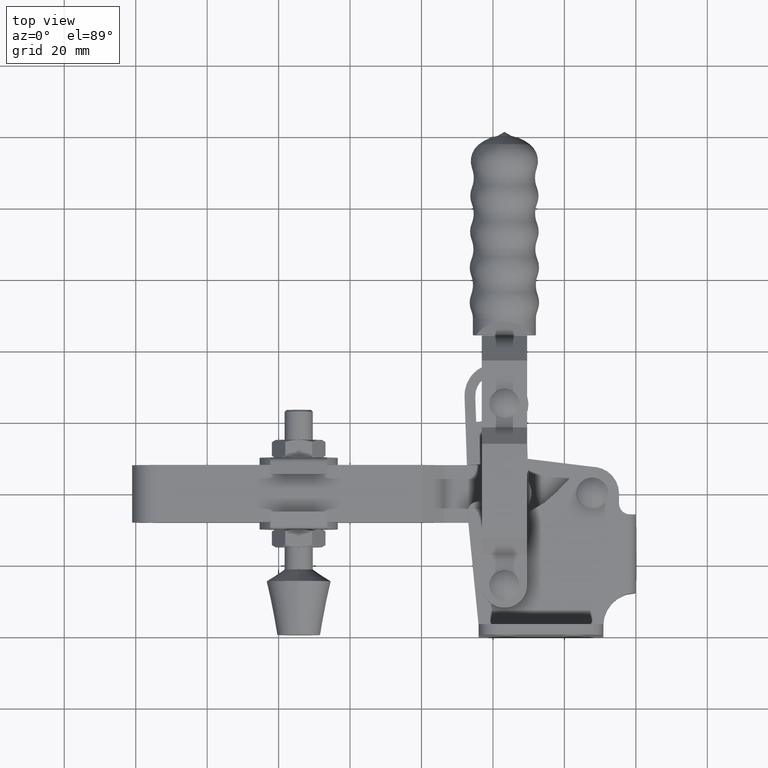
[diagram: clean part render]
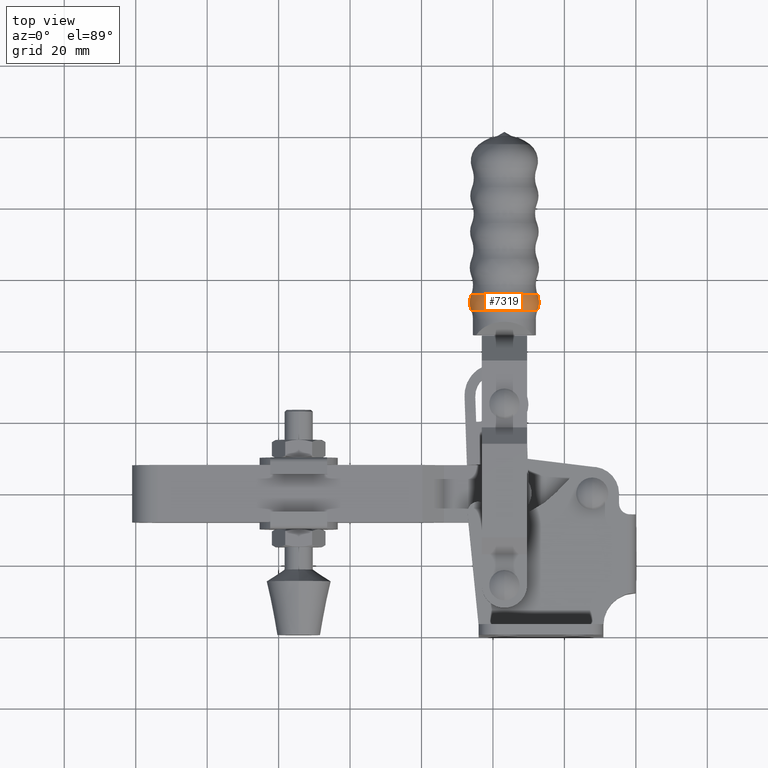
[diagram: same view with one face highlighted and labeled with its STEP entity id]
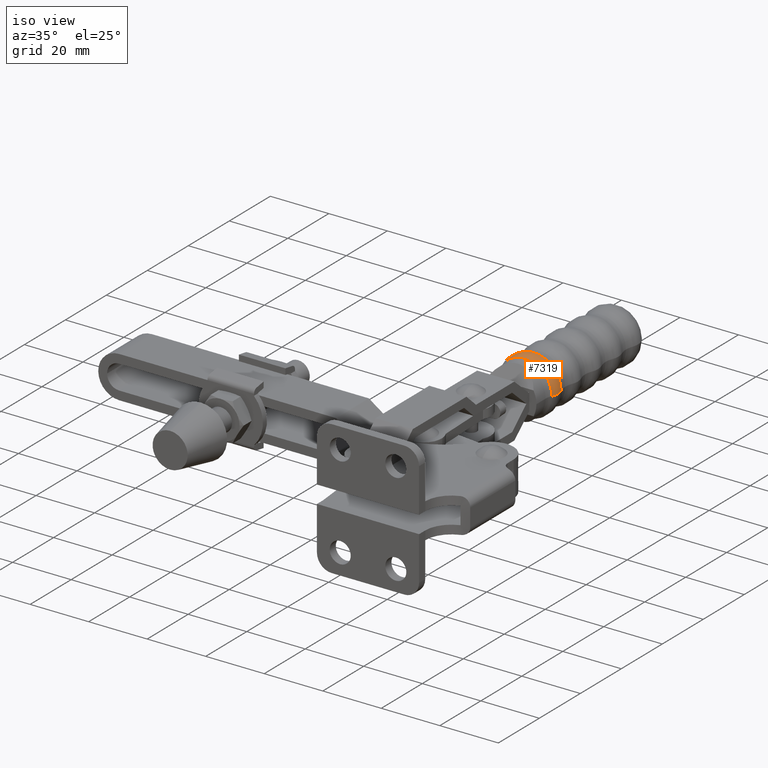
[diagram: same view with one face highlighted and labeled with its STEP entity id]
A machine part, top view. The second image highlights one B-rep face of the part: STEP entity #7319.
A second angle (iso view) of the same face is appended — the face is thin or edge-on in the first view.
In plain terms, the highlighted toroidal blend (fillet) surface has major radius 3.7204 mm and minor (blend) radius 6 mm.
Its self-contained STEP definition (entity closure, byte-faithful):
#213 = DIRECTION ( 'NONE',  ( -1.224646799147353200E-016, -1.246487069854729000E-032, 1.000000000000000000 ) ) ;
#557 = DIRECTION ( 'NONE',  ( -1.000000000000000000, 0.0000000000000000000, 0.0000000000000000000 ) ) ;
#630 = EDGE_CURVE ( 'NONE', #1106, #4143, #5870, .T. ) ;
#802 = CARTESIAN_POINT ( 'NONE',  ( -36.80000000000023900, 91.10825214997900900, -0.09999999999998945800 ) ) ;
#828 = CARTESIAN_POINT ( 'NONE',  ( -46.06558761842495600, 91.10825214997900900, -0.09999999999998945800 ) ) ;
#1106 = VERTEX_POINT ( 'NONE', #828 ) ;
#1138 = ORIENTED_EDGE ( 'NONE', *, *, #11865, .F. ) ;
#1244 = CIRCLE ( 'NONE', #10412, 9.304223344485169600 ) ;
#1398 = EDGE_CURVE ( 'NONE', #4143, #4484, #11828, .T. ) ;
#1729 = DIRECTION ( 'NONE',  ( -1.000000000000000000, 0.0000000000000000000, 0.0000000000000000000 ) ) ;
#2355 = EDGE_LOOP ( 'NONE', ( #7538, #4740, #8140, #1138 ) ) ;
#2670 = CARTESIAN_POINT ( 'NONE',  ( -36.80000000000023900, 93.39963091714528800, -0.09999999999998945800 ) ) ;
#3593 = DIRECTION ( 'NONE',  ( 0.0000000000000000000, -0.0000000000000000000, -1.000000000000000000 ) ) ;
#3649 = DIRECTION ( 'NONE',  ( -1.017833934423036900E-016, 1.000000000000000000, -0.0000000000000000000 ) ) ;
#4143 = VERTEX_POINT ( 'NONE', #8851 ) ;
#4258 = DIRECTION ( 'NONE',  ( -1.017833934423036900E-016, 1.000000000000000000, -0.0000000000000000000 ) ) ;
#4484 = VERTEX_POINT ( 'NONE', #4987 ) ;
#4642 = EDGE_CURVE ( 'NONE', #10602, #4484, #1244, .T. ) ;
#4740 = ORIENTED_EDGE ( 'NONE', *, *, #1398, .T. ) ;
#4886 = FACE_OUTER_BOUND ( 'NONE', #2355, .T. ) ;
#4987 = CARTESIAN_POINT ( 'NONE',  ( -27.49577665551507300, 95.59518003022576200, -0.09999999999998833400 ) ) ;
#5870 = CIRCLE ( 'NONE', #10477, 9.265587618424712300 ) ;
#6086 = CARTESIAN_POINT ( 'NONE',  ( -36.80000000000023900, 95.59518003022576200, -0.09999999999998945800 ) ) ;
#6089 = CARTESIAN_POINT ( 'NONE',  ( -46.10422334448541900, 95.59518003022576200, -0.09999999999998945800 ) ) ;
#6156 = CIRCLE ( 'NONE', #9058, 5.999999999999956500 ) ;
#6210 = TOROIDAL_SURFACE ( 'NONE', #9647, 3.720356933829293200, 5.999999999999956500 ) ;
#6333 = DIRECTION ( 'NONE',  ( -1.017833934423036900E-016, 1.000000000000000000, -0.0000000000000000000 ) ) ;
#6685 = DIRECTION ( 'NONE',  ( 1.000000000000000000, 0.0000000000000000000, 1.219727444046201400E-016 ) ) ;
#6942 = AXIS2_PLACEMENT_3D ( 'NONE', #9491, #213, #6685 ) ;
#7319 = ADVANCED_FACE ( 'NONE', ( #4886 ), #6210, .T. ) ;
#7538 = ORIENTED_EDGE ( 'NONE', *, *, #630, .T. ) ;
#8140 = ORIENTED_EDGE ( 'NONE', *, *, #4642, .F. ) ;
#8851 = CARTESIAN_POINT ( 'NONE',  ( -27.53441238157552800, 91.10825214997900900, -0.09999999999998832000 ) ) ;
#9058 = AXIS2_PLACEMENT_3D ( 'NONE', #9170, #3593, #10099 ) ;
#9170 = CARTESIAN_POINT ( 'NONE',  ( -40.52035693382953200, 93.39963091714528800, -0.09999999999998945800 ) ) ;
#9491 = CARTESIAN_POINT ( 'NONE',  ( -33.07964306617095200, 93.39963091714528800, -0.09999999999998900000 ) ) ;
#9647 = AXIS2_PLACEMENT_3D ( 'NONE', #2670, #3649, #10166 ) ;
#10099 = DIRECTION ( 'NONE',  ( -1.000000000000000000, 0.0000000000000000000, 0.0000000000000000000 ) ) ;
#10166 = DIRECTION ( 'NONE',  ( -1.000000000000000000, -1.017833934423036900E-016, 0.0000000000000000000 ) ) ;
#10412 = AXIS2_PLACEMENT_3D ( 'NONE', #6086, #4258, #557 ) ;
#10477 = AXIS2_PLACEMENT_3D ( 'NONE', #802, #6333, #1729 ) ;
#10602 = VERTEX_POINT ( 'NONE', #6089 ) ;
#11828 = CIRCLE ( 'NONE', #6942, 5.999999999999956500 ) ;
#11865 = EDGE_CURVE ( 'NONE', #1106, #10602, #6156, .T. ) ;